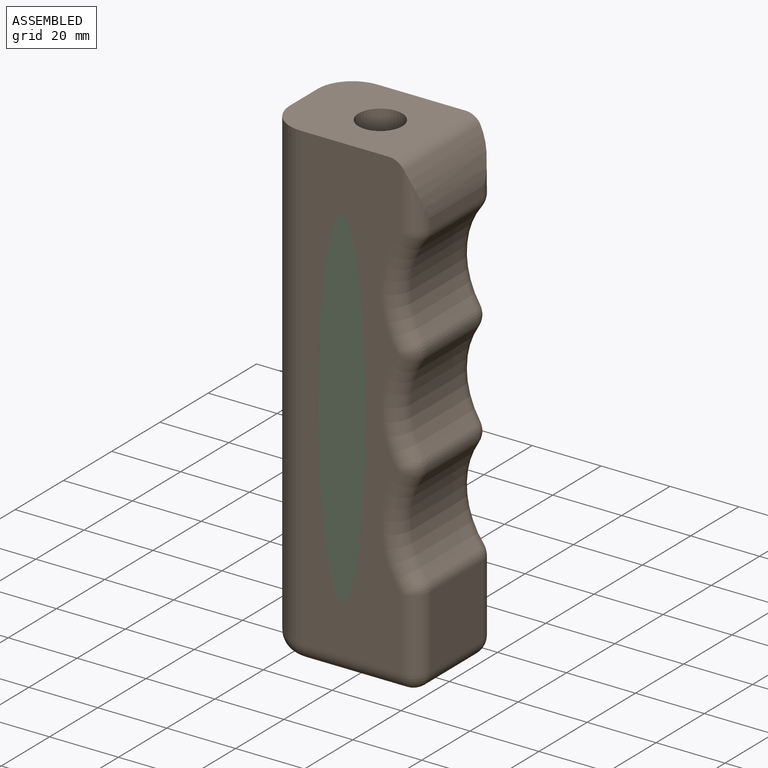
[diagram: assembled view]
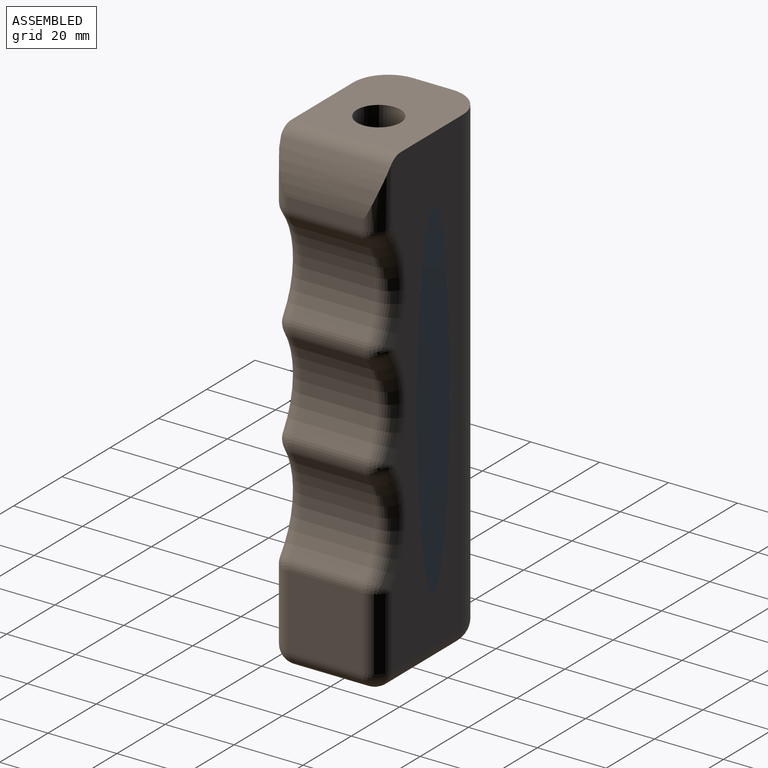
[diagram: assembled view, second angle]
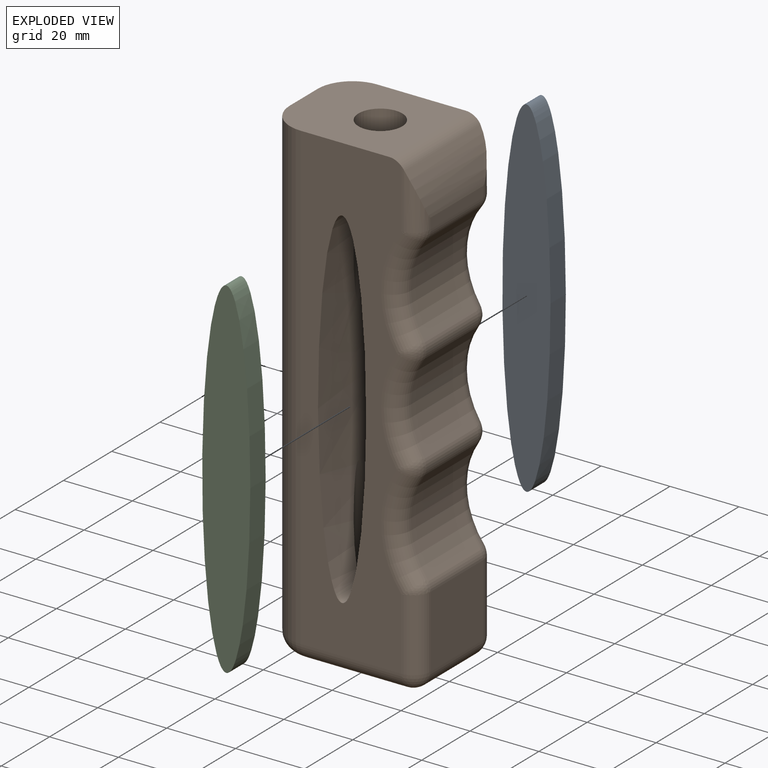
[diagram: exploded view]
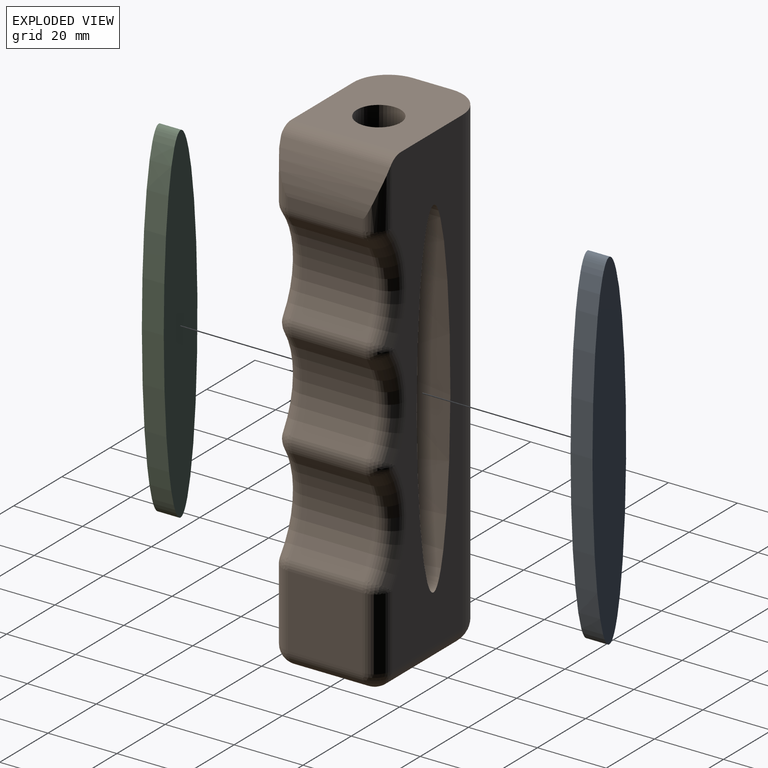
[diagram: exploded view, second angle]
ASSEMBLY  parts=3 mates=2
PART A: 3 faces, bbox 14x101.6x6.4 mm
  f0: extruded ~101.6x13.97mm, area 1328.9mm2, adj f1,f2
  f1: plane 101.6x13.97mm, normal (0,0,1), area 1114.8mm2, adj f0
  f2: plane 101.6x13.97mm, normal (0,0,-1), area 1114.8mm2, adj f0
PART B: 47 faces, bbox 45.3x33.4x139.7 mm
  f0: cylinder r=6.35mm len=48.7mm, axis (0,0,-1), area 1325.1mm2, adj f7,f46
  f1: cylinder r=6.35mm len=48.7mm, axis (0,0,-1), area 1282.2mm2, adj f8,f46
  f2: plane 134.62x29.21mm, normal (0,-1,0), area 2414.3mm2, adj f7,f14,f15,f35,f37,f39,f41,f43
  f3: plane 21.59x3.06mm, normal (1,0,0), area 66mm2, adj f12,f16,f20,f45
  f4: plane 134.62x29.21mm, normal (0,1,0), area 2414.3mm2, adj f7,f13,f15,f20,f22,f24,f26,f28
  f5: plane 21.59x20.93mm, normal (1,0,0), area 451.9mm2, adj f19,f28,f33,f37
  f6: plane 134.62x11.43mm, normal (-1,0,0), area 1538.7mm2, adj f7,f13,f14,f32
  f7: plane 35.85x31.75mm, normal (0,0,1), area 967.4mm2, adj f0,f2,f4,f6,f13,f14,f15
  f8: plane 34.29x21.59mm, normal (0,0,-1), area 602.6mm2, adj f1,f29,f30,f32,f33,f34,f35
  f9: cylinder r=22.86mm len=26.44mm, axis (0,-1,0), area 609.1mm2, adj f18,f19,f26,f39
  f10: cylinder r=22.86mm len=24.94mm, axis (0,-1,0), area 569.5mm2, adj f17,f18,f24,f41
  f11: cylinder r=22.86mm len=26.44mm, axis (0,-1,0), area 609.1mm2, adj f16,f17,f22,f43
  f12: cylinder r=29.88mm len=31.62mm, axis (0,-1,0), area 389.7mm2, adj f3,f15,f20,f45
  f13: cylinder r=10.16mm len=134.62mm, axis (0,0,1), area 2148.4mm2, adj f4,f6,f7,f30
  f14: cylinder r=10.16mm len=134.62mm, axis (0,0,-1), area 2148.4mm2, adj f2,f6,f7,f34
  f15: cylinder r=5.08mm len=31.75mm, axis (0,-1,0), area 165.1mm2, adj f2,f4,f7,f12,f20,f45
  f16: cylinder r=5.08mm len=21.59mm, axis (0,-1,0), area 72.1mm2, adj f3,f11,f21,f44
  f17: cylinder r=5.08mm len=21.59mm, axis (0,-1,0), area 126.6mm2, adj f10,f11,f23,f42
  f18: cylinder r=5.08mm len=21.59mm, axis (0,-1,0), area 126.6mm2, adj f9,f10,f25,f40
  f19: cylinder r=5.08mm len=21.59mm, axis (0,-1,0), area 72.1mm2, adj f5,f9,f27,f38
  f20: cylinder r=5.08mm len=17.17mm, axis (0,0,-1), area 80.4mm2, adj f3,f4,f12,f15,f21
  f21: sphere r=5.08mm, area 17mm2, adj f16,f20,f22
  f22: torus R=27.94mm, axis (0,-1,0), area 243.3mm2, adj f4,f11,f21,f23
  f23: sphere r=5.08mm, area 29.8mm2, adj f17,f22,f24
  f24: torus R=27.94mm, axis (0,-1,0), area 227.5mm2, adj f4,f10,f23,f25
  f25: sphere r=5.08mm, area 29.8mm2, adj f18,f24,f26
  f26: torus R=27.94mm, axis (0,-1,0), area 243.3mm2, adj f4,f9,f25,f27
  f27: sphere r=5.08mm, area 17mm2, adj f19,f26,f28
  f28: cylinder r=5.08mm len=20.93mm, axis (0,0,-1), area 167mm2, adj f4,f5,f27,f31
  f29: cylinder r=5.08mm len=29.21mm, axis (-1,0,0), area 233.1mm2, adj f4,f8,f30,f31
  f30: torus R=5.08mm, axis (0,0,1), area 104.2mm2, adj f8,f13,f29,f32
  f31: sphere r=5.08mm, area 40.5mm2, adj f28,f29,f33
  f32: cylinder r=5.08mm len=11.43mm, axis (0,-1,0), area 91.2mm2, adj f6,f8,f30,f34
  f33: cylinder r=5.08mm len=21.59mm, axis (0,1,0), area 172.3mm2, adj f5,f8,f31,f36
  f34: torus R=5.08mm, axis (0,0,1), area 104.2mm2, adj f8,f14,f32,f35
  f35: cylinder r=5.08mm len=29.21mm, axis (1,0,0), area 233.1mm2, adj f2,f8,f34,f36
  f36: sphere r=5.08mm, area 40.5mm2, adj f33,f35,f37
  f37: cylinder r=5.08mm len=20.93mm, axis (0,0,1), area 167mm2, adj f2,f5,f36,f38
  f38: sphere r=5.08mm, area 17mm2, adj f19,f37,f39
  f39: torus R=27.94mm, axis (0,-1,0), area 243.3mm2, adj f2,f9,f38,f40
  f40: sphere r=5.08mm, area 29.8mm2, adj f18,f39,f41
  f41: torus R=27.94mm, axis (0,-1,0), area 227.5mm2, adj f2,f10,f40,f42
  f42: sphere r=5.08mm, area 29.8mm2, adj f17,f41,f43
  f43: torus R=27.94mm, axis (0,-1,0), area 243.3mm2, adj f2,f11,f42,f44
  f44: sphere r=5.08mm, area 17mm2, adj f16,f43,f45
  f45: cylinder r=5.08mm len=17.17mm, axis (0,0,1), area 80.4mm2, adj f2,f3,f12,f15,f44
  f46: extruded ~101.6x31.75mm, area 5663mm2, adj f0,f1,f2,f4
PART C: same geometry as A
PLACE A rot(axis=(-1,0,0),90deg) t=(0.68,9.52,-69.8)mm
PLACE B t=(0,0,-139.7)mm
PLACE C rot(axis=(1,0,0),90deg) t=(0.68,-9.53,-69.9)mm
MATE fastened A.f1 <-> B.f4  axis (0,1,0) through (0,15.87,-69.85)mm
MATE fastened C.f1 <-> B.f2  axis (0,-1,0) through (0,-15.88,-69.85)mm
